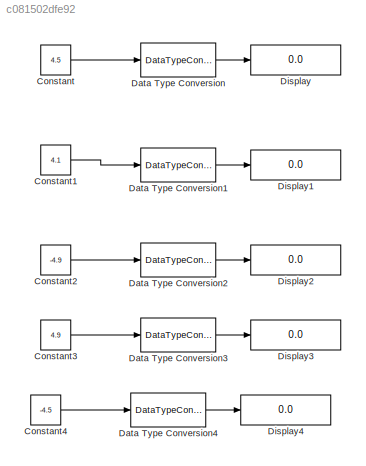
MODEL slx_c081502dfe92
KIND model
CONFIG AbsTol = auto
CONFIG EnableMultiTasking = off
CONFIG FixedStep = auto
CONFIG MaxStep = auto
CONFIG MinStep = auto
CONFIG RelTol = 1e-3
CONFIG SampleTimeConstraint = Unconstrained
CONFIG SolverName = VariableStepAuto
CONFIG StartTime = 0.0
CONFIG StopTime = 10.0
BLOCK [Constant] Constant
  Value = 4.5
BLOCK [Constant] Constant1
  Value = 4.1
BLOCK [Constant] Constant2
  Value = -4.9
BLOCK [Constant] Constant3
  Value = 4.9
BLOCK [Constant] Constant4
  Value = -4.5
BLOCK [DataTypeConversion] Data Type Conversion
  OutDataTypeStr = int8
  RndMeth = Round
  SaturateOnIntegerOverflow = off
BLOCK [DataTypeConversion] Data Type Conversion1
  OutDataTypeStr = int8
  RndMeth = Nearest
  SaturateOnIntegerOverflow = off
BLOCK [DataTypeConversion] Data Type Conversion2
  OutDataTypeStr = int8
  RndMeth = Nearest
  SaturateOnIntegerOverflow = off
BLOCK [DataTypeConversion] Data Type Conversion3
  OutDataTypeStr = int8
  SaturateOnIntegerOverflow = off
BLOCK [DataTypeConversion] Data Type Conversion4
  OutDataTypeStr = int8
  RndMeth = Round
  SaturateOnIntegerOverflow = off
BLOCK [Display] Display
  Decimation = 1
  Ports = [1]
BLOCK [Display] Display1
  Decimation = 1
  Ports = [1]
BLOCK [Display] Display2
  Decimation = 1
  Ports = [1]
BLOCK [Display] Display3
  Decimation = 1
  Ports = [1]
BLOCK [Display] Display4
  Decimation = 1
  Ports = [1]
LINE Constant1:1 -> Data Type Conversion1:1
LINE Constant2:1 -> Data Type Conversion2:1
LINE Constant3:1 -> Data Type Conversion3:1
LINE Constant4:1 -> Data Type Conversion4:1
LINE Constant:1 -> Data Type Conversion:1
LINE Data Type Conversion1:1 -> Display1:1
LINE Data Type Conversion2:1 -> Display2:1
LINE Data Type Conversion3:1 -> Display3:1
LINE Data Type Conversion4:1 -> Display4:1
LINE Data Type Conversion:1 -> Display:1
